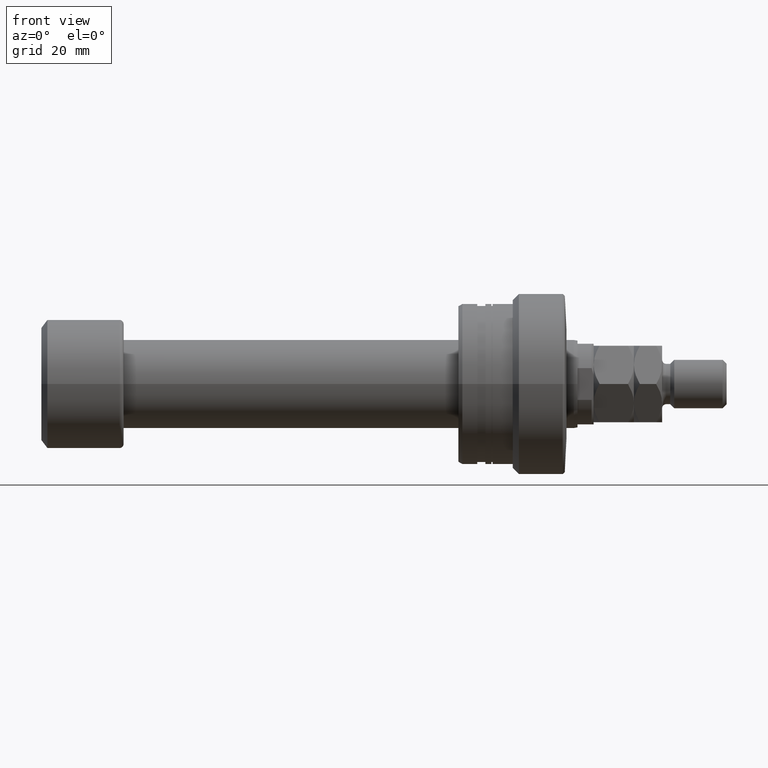
[diagram: clean part render]
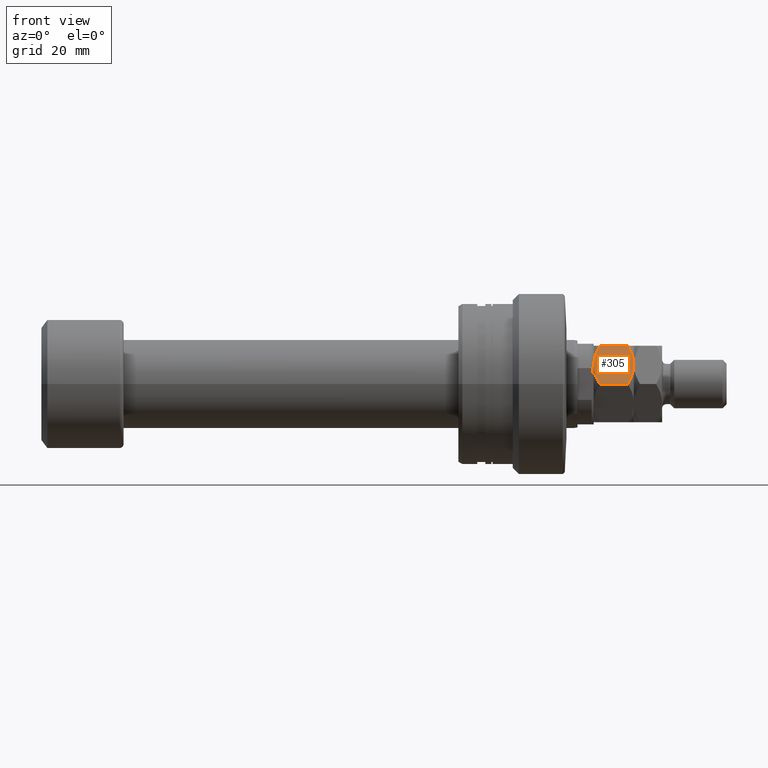
[diagram: same view with one face highlighted and labeled with its STEP entity id]
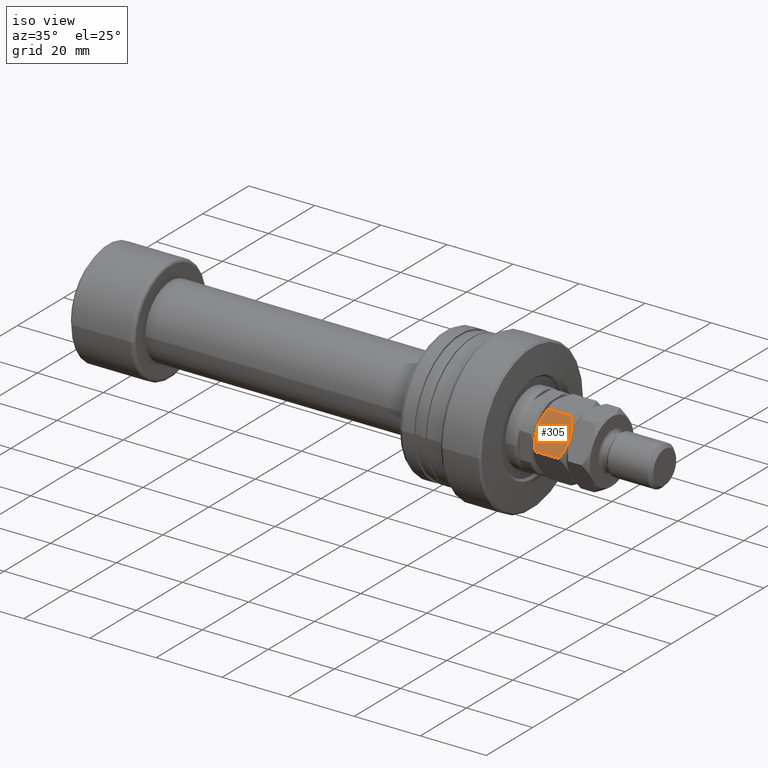
[diagram: same view with one face highlighted and labeled with its STEP entity id]
A machine part, front view. The second image highlights one B-rep face of the part: STEP entity #305.
A second angle (iso view) of the same face is appended — the face is thin or edge-on in the first view.
In plain terms, the highlighted planar face has unit normal (-0, 0.866, -0.5).
Its self-contained STEP definition (entity closure, byte-faithful):
#107 = ORIENTED_EDGE ( 'NONE', *, *, #632, .F. ) ;
#118 = CARTESIAN_POINT ( 'NONE',  ( -3.001642536556159024E-15, -10.96965511460288667, 8.530344885397118659 ) ) ;
#190 = ORIENTED_EDGE ( 'NONE', *, *, #2349, .F. ) ;
#305 = ADVANCED_FACE ( 'NONE', ( #1105 ), #2105, .F. ) ;
#374 = AXIS2_PLACEMENT_3D ( 'NONE', #2401, #2083, #3620 ) ;
#404 = CARTESIAN_POINT ( 'NONE',  ( -4.749999999999998224, -8.227241335952168555, 10.00000000000000000 ) ) ;
#515 = CARTESIAN_POINT ( 'NONE',  ( -2.690254945947328391, -9.416435697371479563, 0.2834621384311885595 ) ) ;
#620 = LINE ( 'NONE', #3084, #2789 ) ;
#632 = EDGE_CURVE ( 'NONE', #3468, #1591, #3939, .T. ) ;
#650 = CARTESIAN_POINT ( 'NONE',  ( -6.809745054052672053, -7.038046974532858435, 9.716537861568809831 ) ) ;
#711 = CARTESIAN_POINT ( 'NONE',  ( -8.755131854751340370, -5.914877381471537632, 8.960394709567209404 ) ) ;
#783 = CARTESIAN_POINT ( 'NONE',  ( -3.091726368128225211, -9.184646063703393537, 0.1797418547120354371 ) ) ;
#1020 = CARTESIAN_POINT ( 'NONE',  ( -3.923784602134047894, -8.704257018318688921, 10.00000000000000178 ) ) ;
#1056 = EDGE_LOOP ( 'NONE', ( #2299, #190, #107, #2350, #3444, #1706 ) ) ;
#1105 = FACE_OUTER_BOUND ( 'NONE', #1056, .T. ) ;
#1111 = CARTESIAN_POINT ( 'NONE',  ( -6.388382028668172730, -7.281321030665154126, 0.1458756157754690086 ) ) ;
#1180 = B_SPLINE_CURVE_WITH_KNOTS ( 'NONE', 3,
 ( #2238, #711, #1959, #650, #3413, #3197, #2482, #404 ),
 .UNSPECIFIED., .F., .F.,
 ( 4, 2, 2, 4 ),
 ( 2.544312669948822529E-07, 0.002843014744722344167, 0.004264394901450020009, 0.005685775058177695851 ),
 .UNSPECIFIED. ) ;
#1209 = VERTEX_POINT ( 'NONE', #2356 ) ;
#1262 = DIRECTION ( 'NONE',  ( -0.000000000000000000, -0.000000000000000000, -1.000000000000000000 ) ) ;
#1282 = EDGE_CURVE ( 'NONE', #2304, #4011, #620, .T. ) ;
#1383 = CARTESIAN_POINT ( 'NONE',  ( -7.990178599141542826, -6.356523349515333265, 0.6716369694512676070 ) ) ;
#1462 = CARTESIAN_POINT ( 'NONE',  ( -0.7448681452486625165, -10.53960529043279770, 1.039605290432793705 ) ) ;
#1484 = CARTESIAN_POINT ( 'NONE',  ( -9.500000000000000000, -5.484827557301445999, 1.469655114602884893 ) ) ;
#1535 = EDGE_CURVE ( 'NONE', #2031, #1209, #2657, .T. ) ;
#1572 = VECTOR ( 'NONE', #1262, 1000.000000000000000 ) ;
#1591 = VERTEX_POINT ( 'NONE', #3550 ) ;
#1606 = EDGE_CURVE ( 'NONE', #1209, #4011, #2703, .T. ) ;
#1616 = CARTESIAN_POINT ( 'NONE',  ( -1.509821400858457840, -10.09795932238900029, 9.328363030548734613 ) ) ;
#1701 = CARTESIAN_POINT ( 'NONE',  ( -3.111617971331826382, -9.173161641239186537, 9.854124384224533628 ) ) ;
#1706 = ORIENTED_EDGE ( 'NONE', *, *, #1606, .F. ) ;
#1959 = CARTESIAN_POINT ( 'NONE',  ( -7.993405681187616629, -6.354660192827335408, 9.325825117528722785 ) ) ;
#2031 = VERTEX_POINT ( 'NONE', #3263 ) ;
#2083 = DIRECTION ( 'NONE',  ( 0.4999999999999998890, 0.8660254037844387076, -0.000000000000000000 ) ) ;
#2105 = PLANE ( 'NONE',  #374 ) ;
#2218 = LINE ( 'NONE', #2560, #1572 ) ;
#2238 = CARTESIAN_POINT ( 'NONE',  ( -9.500000000000000000, -5.484827557301445999, 8.530344885397115107 ) ) ;
#2299 = ORIENTED_EDGE ( 'NONE', *, *, #1535, .F. ) ;
#2304 = VERTEX_POINT ( 'NONE', #2456 ) ;
#2324 = CARTESIAN_POINT ( 'NONE',  ( -4.749999999999998224, -8.227241335952168555, 10.00000000000000000 ) ) ;
#2349 = EDGE_CURVE ( 'NONE', #1591, #2031, #2218, .T. ) ;
#2350 = ORIENTED_EDGE ( 'NONE', *, *, #3711, .F. ) ;
#2352 = CARTESIAN_POINT ( 'NONE',  ( -8.755994125639036341, -5.914379549142410930, 1.040103122761829813 ) ) ;
#2356 = CARTESIAN_POINT ( 'NONE',  ( -4.749999999999998224, -8.227241335952168555, 0.000000000000000000 ) ) ;
#2369 = CARTESIAN_POINT ( 'NONE',  ( -5.576215397865947665, -7.750225653585648189, 8.690558038829119507E-16 ) ) ;
#2401 = CARTESIAN_POINT ( 'NONE',  ( -9.500000000000000000, -5.484827557301445999, 10.00000000000000000 ) ) ;
#2411 = DIRECTION ( 'NONE',  ( -0.000000000000000000, -0.000000000000000000, -1.000000000000000000 ) ) ;
#2456 = CARTESIAN_POINT ( 'NONE',  ( -9.500000000000000000, -5.484827557301445999, 8.530344885397115107 ) ) ;
#2482 = CARTESIAN_POINT ( 'NONE',  ( -5.166021702288271733, -7.987051094147306074, 10.00000000000000000 ) ) ;
#2560 = CARTESIAN_POINT ( 'NONE',  ( -3.035766082959412415E-15, -10.96965511460288667, 10.00000000000000000 ) ) ;
#2607 = CARTESIAN_POINT ( 'NONE',  ( -0.7440058743609659908, -10.54010312276191996, 8.959896877238168855 ) ) ;
#2657 = B_SPLINE_CURVE_WITH_KNOTS ( 'NONE', 3,
 ( #3766, #1462, #2672, #515, #783, #3914, #3570, #3609 ),
 .UNSPECIFIED., .F., .F.,
 ( 4, 2, 2, 4 ),
 ( 2.544312669954764994E-07, 0.002843014744722341131, 0.004264394901450013937, 0.005685775058177687177 ),
 .UNSPECIFIED. ) ;
#2672 = CARTESIAN_POINT ( 'NONE',  ( -1.506594318812384703, -10.09982247907699993, 0.6741748824712766597 ) ) ;
#2703 = B_SPLINE_CURVE_WITH_KNOTS ( 'NONE', 3,
 ( #3245, #2369, #1111, #1383, #2352, #3591 ),
 .UNSPECIFIED., .F., .F.,
 ( 4, 2, 4 ),
 ( 0.005685775058177687177, 0.008508623398180320194, 0.01133147173818295321 ),
 .UNSPECIFIED. ) ;
#2789 = VECTOR ( 'NONE', #2411, 1000.000000000000000 ) ;
#3084 = CARTESIAN_POINT ( 'NONE',  ( -9.500000000000000000, -5.484827557301445999, 10.00000000000000000 ) ) ;
#3197 = CARTESIAN_POINT ( 'NONE',  ( -5.588267949974986770, -7.743267109381074320, 9.962294231267001976 ) ) ;
#3245 = CARTESIAN_POINT ( 'NONE',  ( -4.749999999999998224, -8.227241335952168555, 0.000000000000000000 ) ) ;
#3263 = CARTESIAN_POINT ( 'NONE',  ( -2.946964139499808652E-15, -10.96965511460288667, 1.469655114602881563 ) ) ;
#3413 = CARTESIAN_POINT ( 'NONE',  ( -6.408273631871771236, -7.269836608200942685, 9.820258145287965590 ) ) ;
#3444 = ORIENTED_EDGE ( 'NONE', *, *, #1282, .T. ) ;
#3468 = VERTEX_POINT ( 'NONE', #2324 ) ;
#3550 = CARTESIAN_POINT ( 'NONE',  ( -3.001642536556159024E-15, -10.96965511460288667, 8.530344885397118659 ) ) ;
#3570 = CARTESIAN_POINT ( 'NONE',  ( -4.333978297711725602, -8.467431577757036365, 9.136662057716388954E-16 ) ) ;
#3591 = CARTESIAN_POINT ( 'NONE',  ( -9.500000000000000000, -5.484827557301445999, 1.469655114602884893 ) ) ;
#3609 = CARTESIAN_POINT ( 'NONE',  ( -4.749999999999998224, -8.227241335952168555, 0.000000000000000000 ) ) ;
#3620 = DIRECTION ( 'NONE',  ( -0.8660254037844387076, 0.4999999999999998890, 0.000000000000000000 ) ) ;
#3711 = EDGE_CURVE ( 'NONE', #2304, #3468, #1180, .T. ) ;
#3766 = CARTESIAN_POINT ( 'NONE',  ( -2.946964139499808652E-15, -10.96965511460288667, 1.469655114602881563 ) ) ;
#3800 = CARTESIAN_POINT ( 'NONE',  ( -4.749999999999998224, -8.227241335952168555, 10.00000000000000000 ) ) ;
#3914 = CARTESIAN_POINT ( 'NONE',  ( -3.911732050025008789, -8.711215562523268119, 0.03770576873300111181 ) ) ;
#3939 = B_SPLINE_CURVE_WITH_KNOTS ( 'NONE', 3,
 ( #3800, #1020, #1701, #1616, #2607, #118 ),
 .UNSPECIFIED., .F., .F.,
 ( 4, 2, 4 ),
 ( 0.005685775058177695851, 0.008508623398180325398, 0.01133147173818295494 ),
 .UNSPECIFIED. ) ;
#4011 = VERTEX_POINT ( 'NONE', #1484 ) ;